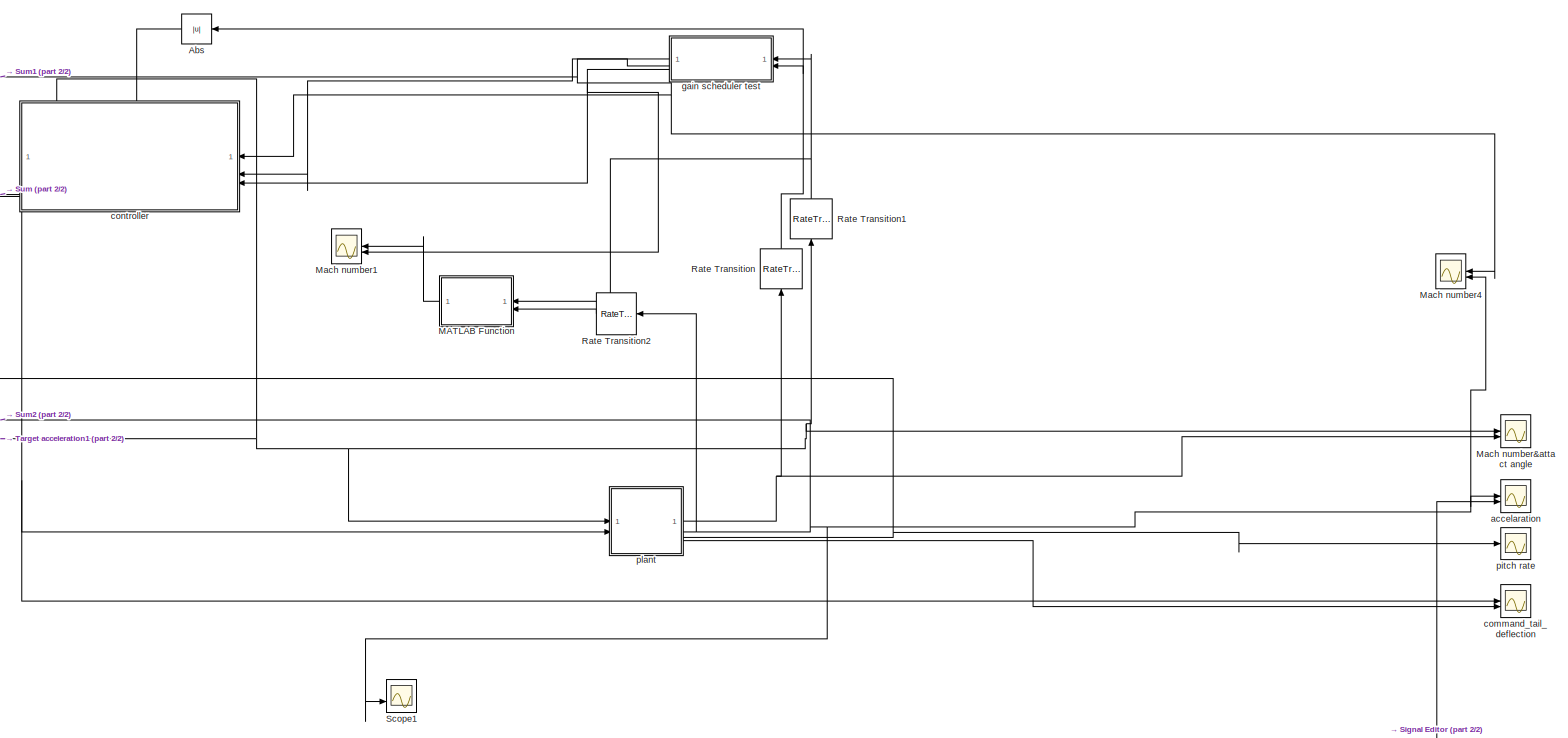
[diagram: root canvas - part 1/2, most of the canvas]
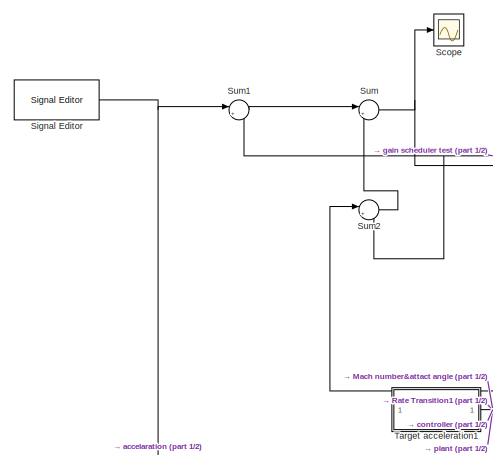
[diagram: root canvas - part 2/2, top left region]
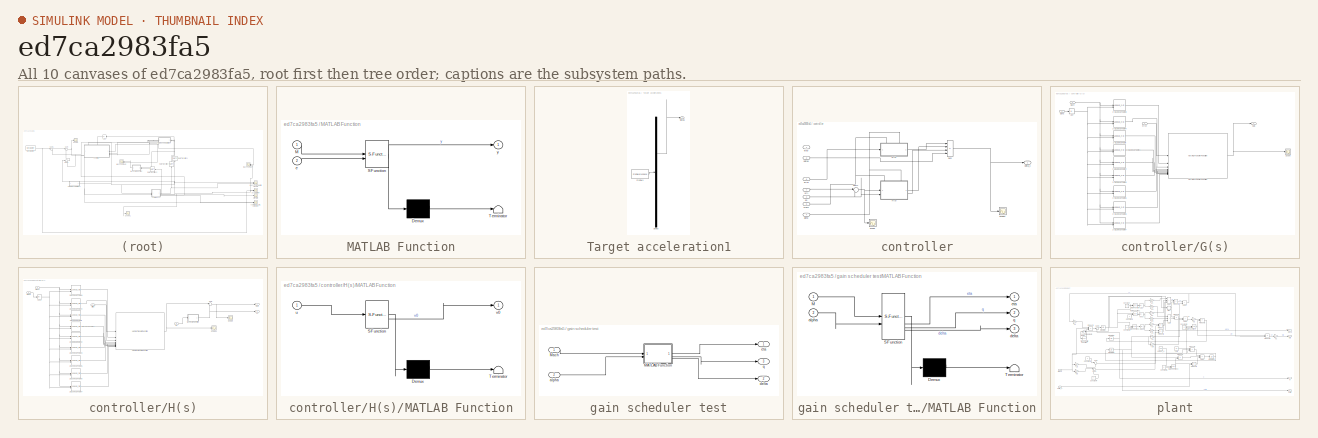
[diagram: thumbnail index - all 10 canvases of the model, root first then tree order]
MODEL slx_ed7ca2983fa5
KIND model
CONFIG AbsTol = auto
CONFIG EnableMultiTasking = off
CONFIG FixedStep = 0.00001
CONFIG MaxStep = auto
CONFIG MinStep = auto
CONFIG RelTol = 1e-3
CONFIG SampleTimeConstraint = Unconstrained
CONFIG SolverName = FixedStepAuto
CONFIG StartTime = 0.0
CONFIG StopTime = 10
BLOCK [Scope]  pitch rate
  Floating = off
  NumInputPorts = 1
  ScopeSpecificationString = Simulink.scopes.TimeScopeBlockCfg('CurrentConfiguration', extmgr.ConfigurationSet(extmgr.Configuration('Core','General UI',true),extmgr.Configuration('Core','Source UI',true),extmgr.Configuration('Sources','WiredSimulink',true,'DataLoggingVariableName','ScopeData1'),extmgr.Configuration('Visuals','Time Domain',true,'SerializedDisplays',{struct('MinYLimReal','-3.8999','MaxYLimReal','3.93521','YLabe...<+1419ch>
BLOCK [Abs] Abs
  SaturateOnIntegerOverflow = off
BLOCK [SubSystem] MATLAB Function
  ErrorFcn = Stateflow.Translate.translate
  LibrarySourceBlock = simulink/User-Defined\nFunctions/MATLAB Function
  PermitHierarchicalResolution = ExplicitOnly
  SFBlockType = MATLAB Function
  TreatAsAtomicUnit = on
BLOCK [Demux] MATLAB Function/ Demux 
  Outputs = 1
BLOCK [S-Function] MATLAB Function/ SFunction 
  EnableBusSupport = on
  FunctionName = sf_sfun
  PortCounts = [2 2]
  SFcnIsStateOwnerBlock = off
  SFunctionDeploymentMode = off
  Tag = Stateflow S-Function 1
BLOCK [Terminator] MATLAB Function/ Terminator 
BLOCK [Inport] MATLAB Function/M
BLOCK [Inport] MATLAB Function/e
  Port = 2
BLOCK [Outport] MATLAB Function/y
BLOCK [Scope] Mach number&attact angle
  Floating = off
  NumInputPorts = 2
  ScopeSpecificationString = Simulink.scopes.TimeScopeBlockCfg('CurrentConfiguration', extmgr.ConfigurationSet(extmgr.Configuration('Core','General UI',true),extmgr.Configuration('Core','Source UI',true),extmgr.Configuration('Sources','WiredSimulink',true,'DataLoggingVariableName','ScopeData1'),extmgr.Configuration('Visuals','Time Domain',true,'SerializedDisplays',{struct('MinYLimReal','2.46297','MaxYLimReal','2.71523','YLabe...<+2009ch>
BLOCK [Scope] Mach number1
  Floating = off
  NumInputPorts = 2
  ScopeSpecificationString = Simulink.scopes.TimeScopeBlockCfg('CurrentConfiguration', extmgr.ConfigurationSet(extmgr.Configuration('Core','General UI',true),extmgr.Configuration('Core','Source UI',true),extmgr.Configuration('Sources','WiredSimulink',true,'DataLoggingVariableName','ScopeData2'),extmgr.Configuration('Visuals','Time Domain',true,'SerializedDisplays',{struct('MinYLimReal','-32384.21273','MaxYLimReal','3635.73109...<+2059ch>
BLOCK [Scope] Mach number4
  Floating = off
  NumInputPorts = 2
  ScopeSpecificationString = Simulink.scopes.TimeScopeBlockCfg('CurrentConfiguration', extmgr.ConfigurationSet(extmgr.Configuration('Core','General UI',true),extmgr.Configuration('Core','Source UI',true),extmgr.Configuration('Sources','WiredSimulink',true,'DataLoggingVariableName','ScopeData3'),extmgr.Configuration('Visuals','Time Domain',true,'SerializedDisplays',{struct('MinYLimReal','-38915498600.27844','MaxYLimReal','4323...<+1551ch>
BLOCK [RateTransition] Rate Transition
  NameLocation = right
  OutPortSampleTime = 0.001
BLOCK [RateTransition] Rate Transition1
  NameLocation = right
  OutPortSampleTime = 0.001
BLOCK [RateTransition] Rate Transition2
  OutPortSampleTime = 0.0001
BLOCK [Scope] Scope
  Floating = off
  NumInputPorts = 1
  ScopeSpecificationString = Simulink.scopes.TimeScopeBlockCfg('CurrentConfiguration', extmgr.ConfigurationSet(extmgr.Configuration('Core','General UI',true),extmgr.Configuration('Core','Source UI',true),extmgr.Configuration('Sources','WiredSimulink',true,'DataLoggingVariableName','ScopeData8'),extmgr.Configuration('Visuals','Time Domain',true,'SerializedDisplays',{struct('MinYLimReal','-0.06131','MaxYLimReal','0.02821','YLab...<+1452ch>
BLOCK [Scope] Scope1
  Floating = off
  NumInputPorts = 2
  ScopeSpecificationString = Simulink.scopes.TimeScopeBlockCfg('CurrentConfiguration', extmgr.ConfigurationSet(extmgr.Configuration('Core','General UI',true),extmgr.Configuration('Core','Source UI',true),extmgr.Configuration('Sources','WiredSimulink',true,'DataLoggingVariableName','ScopeData9'),extmgr.Configuration('Visuals','Time Domain',true,'SerializedDisplays',{struct('MinYLimReal','-1.00000','MaxYLimReal','1.00000','YLab...<+2041ch>
BLOCK [Reference] Signal Editor  REF=SignalEditorBlockLib/Signal Editor
  LibrarySourceBlock = simulink/Sources/Signal Editor
  SourceBlock = SignalEditorBlockLib/Signal Editor
  SourceType = SignalEditor
  UserDataPersistent = on
BLOCK [Sum] Sum
  Inputs = |+-
BLOCK [Sum] Sum1
  Inputs = |+-
BLOCK [Sum] Sum2
  Inputs = |+-
BLOCK [SubSystem] Target acceleration1
  ClipboardFcn = sigbuilder_block('clipboard');
  CloseFcn = sigbuilder_block('close');
  ContinueFcn = sigbuilder_block('continue');
  CopyFcn = sigbuilder_block('copy');
  DeleteFcn = sigbuilder_block('delete');
  LoadFcn = sigbuilder_block('load',[278.5 464.5 513.5 322.5 ]);
  MaskHideContents = on
  ModelCloseFcn = sigbuilder_block('modelClose');
  NameChangeFcn = sigbuilder_block('namechange');
  OpenFcn = sigbuilder_block('open',[221 107.5 550.5 322.5 ]);
  PauseFcn = sigbuilder_block('pause');
  PreSaveFcn = sigbuilder_block('preSave');
  StartFcn = sigbuilder_block('start');
  StopFcn = sigbuilder_block('stop');
  Tag = STV Subsys
BLOCK [Demux] Target acceleration1/Demux
  DisplayOption = none
  Outputs = 1
  Tag = STV Demux
BLOCK [FromWorkspace] Target acceleration1/FromWs
  Tag = STV FromWs
  VariableName = tuvar
BLOCK [Outport] Target acceleration1/Signal 1
  Tag = STV Outport
BLOCK [Scope] accelaration
  Floating = off
  NumInputPorts = 2
  ScopeSpecificationString = Simulink.scopes.TimeScopeBlockCfg('CurrentConfiguration', extmgr.ConfigurationSet(extmgr.Configuration('Core','General UI',true,'FigureColor',[1 1 1]),extmgr.Configuration('Core','Source UI',true),extmgr.Configuration('Sources','WiredSimulink',true),extmgr.Configuration('Visuals','Time Domain',true,'SerializedDisplays',{struct('MinYLimReal','-4.67438','MaxYLimReal','31.70864','YLabelReal','','MinY...<+2545ch>
BLOCK [Scope] command_tail_deflection
  Floating = off
  NumInputPorts = 2
  ScopeSpecificationString = Simulink.scopes.TimeScopeBlockCfg('CurrentConfiguration', extmgr.ConfigurationSet(extmgr.Configuration('Core','General UI',true,'FigureColor',[1 1 1]),extmgr.Configuration('Core','Source UI',true),extmgr.Configuration('Sources','WiredSimulink',true,'DataLoggingVariableName','ScopeData2'),extmgr.Configuration('Visuals','Time Domain',true,'SerializedDisplays',{struct('MinYLimReal','-6.84869','MaxYLi...<+2307ch>
BLOCK [SubSystem] controller
  PortSchema = {"entries":[{"content":{"sides":[{"content":{"connectorIds":["In1","In2"]},"type":"ConnectorPlacement.EquallySpacedRectSide","uuid":"ccbd3968-3c34-4172-8982-2717baa6aaec"},{"content":{"connectorIds":["In6","In7"],"side":"RIGHT"},"type":"ConnectorPlacement.EquallySpacedRectSide","uuid":"ff48a950-eb2b-4faf-a742-71355e33462e"},{"content":{"connectorIds":["In3","In4","In5"],"side":"TOP"},"type":"Conne...<+418ch>
BLOCK [SubSystem] controller/G(s)
  PortSchema = {"entries":[{"content":{"sides":[{"content":{"connectorIds":["In1"]},"type":"ConnectorPlacement.EquallySpacedRectSide","uuid":"89c4dd89-01f0-41d8-90e7-82360ec46edc"},{"content":{"connectorIds":["Out1"],"side":"RIGHT"},"type":"ConnectorPlacement.EquallySpacedRectSide","uuid":"293521c5-f39c-474b-9224-6fe6832128f5"},{"content":{"connectorIds":["In2","In3"],"side":"TOP"},"type":"ConnectorPlacement.Equ...<+251ch>
BLOCK [Lookup_n-D] controller/G(s)/2-D Lookup Table
  BreakpointsForDimension1 = Mi
  BreakpointsForDimension1FirstPoint = 10
  BreakpointsForDimension1Spacing = 12
  BreakpointsForDimension2 = ai
  BreakpointsForDimension2FirstPoint = 10
  BreakpointsForDimension2Spacing = 12
  DiagnosticForOutOfRangeInput = Error
  IndexSearchMethod = Evenly spaced points
  InputPortMap = u0,u1
  InternalRulePriority = Speed
  InterpMethod = Flat
  LookupTableObject = ''
  RndMeth = Simplest
  Table = b_G1
BLOCK [Lookup_n-D] controller/G(s)/2-D Lookup Table1
  BreakpointsForDimension1 = Mi
  BreakpointsForDimension1FirstPoint = 10
  BreakpointsForDimension1Spacing = 12
  BreakpointsForDimension2 = ai
  BreakpointsForDimension2FirstPoint = 10
  BreakpointsForDimension2Spacing = 12
  DiagnosticForOutOfRangeInput = Error
  IndexSearchMethod = Evenly spaced points
  InputPortMap = u0,u1
  InternalRulePriority = Speed
  InterpMethod = Flat
  LookupTableObject = ''
  RndMeth = Simplest
  Table = a_G1
BLOCK [Lookup_n-D] controller/G(s)/2-D Lookup Table2
  BreakpointsForDimension1 = Mi
  BreakpointsForDimension1FirstPoint = 10
  BreakpointsForDimension1Spacing = 12
  BreakpointsForDimension2 = ai
  BreakpointsForDimension2FirstPoint = 10
  BreakpointsForDimension2Spacing = 12
  DiagnosticForOutOfRangeInput = Error
  IndexSearchMethod = Evenly spaced points
  InputPortMap = u0,u1
  InternalRulePriority = Speed
  InterpMethod = Flat
  LookupTableObject = ''
  RndMeth = Simplest
  Table = b_G2
BLOCK [Lookup_n-D] controller/G(s)/2-D Lookup Table3
  BreakpointsForDimension1 = Mi
  BreakpointsForDimension1FirstPoint = 10
  BreakpointsForDimension1Spacing = 12
  BreakpointsForDimension2 = ai
  BreakpointsForDimension2FirstPoint = 10
  BreakpointsForDimension2Spacing = 12
  DiagnosticForOutOfRangeInput = Error
  IndexSearchMethod = Evenly spaced points
  InputPortMap = u0,u1
  InternalRulePriority = Speed
  InterpMethod = Flat
  LookupTableObject = ''
  RndMeth = Simplest
  Table = a_G2
BLOCK [Lookup_n-D] controller/G(s)/2-D Lookup Table4
  BreakpointsForDimension1 = Mi
  BreakpointsForDimension1FirstPoint = 10
  BreakpointsForDimension1Spacing = 12
  BreakpointsForDimension2 = ai
  BreakpointsForDimension2FirstPoint = 10
  BreakpointsForDimension2Spacing = 12
  DiagnosticForOutOfRangeInput = Error
  IndexSearchMethod = Evenly spaced points
  InputPortMap = u0,u1
  InternalRulePriority = Speed
  InterpMethod = Flat
  LookupTableObject = ''
  RndMeth = Simplest
  Table = a_G0
BLOCK [Lookup_n-D] controller/G(s)/2-D Lookup Table5
  BreakpointsForDimension1 = Mi
  BreakpointsForDimension1FirstPoint = 10
  BreakpointsForDimension1Spacing = 12
  BreakpointsForDimension2 = ai
  BreakpointsForDimension2FirstPoint = 10
  BreakpointsForDimension2Spacing = 12
  DiagnosticForOutOfRangeInput = Error
  IndexSearchMethod = Evenly spaced points
  InputPortMap = u0,u1
  InternalRulePriority = Speed
  InterpMethod = Flat
  LookupTableObject = ''
  RndMeth = Simplest
  Table = b_G3
BLOCK [Lookup_n-D] controller/G(s)/2-D Lookup Table6
  BreakpointsForDimension1 = Mi
  BreakpointsForDimension1FirstPoint = 10
  BreakpointsForDimension1Spacing = 12
  BreakpointsForDimension2 = ai
  BreakpointsForDimension2FirstPoint = 10
  BreakpointsForDimension2Spacing = 12
  DiagnosticForOutOfRangeInput = Error
  IndexSearchMethod = Evenly spaced points
  InputPortMap = u0,u1
  InternalRulePriority = Speed
  InterpMethod = Flat
  LookupTableObject = ''
  RndMeth = Simplest
  Table = a_G3
BLOCK [Lookup_n-D] controller/G(s)/2-D Lookup Table7
  BreakpointsForDimension1 = Mi
  BreakpointsForDimension1FirstPoint = 10
  BreakpointsForDimension1Spacing = 12
  BreakpointsForDimension2 = ai
  BreakpointsForDimension2FirstPoint = 10
  BreakpointsForDimension2Spacing = 12
  DiagnosticForOutOfRangeInput = Error
  IndexSearchMethod = Evenly spaced points
  InputPortMap = u0,u1
  InternalRulePriority = Speed
  InterpMethod = Flat
  LookupTableObject = ''
  RndMeth = Simplest
  Table = b_G4
BLOCK [Lookup_n-D] controller/G(s)/2-D Lookup Table8
  BreakpointsForDimension1 = Mi
  BreakpointsForDimension1FirstPoint = 10
  BreakpointsForDimension1Spacing = 12
  BreakpointsForDimension2 = ai
  BreakpointsForDimension2FirstPoint = 10
  BreakpointsForDimension2Spacing = 12
  DiagnosticForOutOfRangeInput = Error
  IndexSearchMethod = Evenly spaced points
  InputPortMap = u0,u1
  InternalRulePriority = Speed
  InterpMethod = Flat
  LookupTableObject = ''
  RndMeth = Simplest
  Table = b_G0
BLOCK [Abs] controller/G(s)/Abs
  SaturateOnIntegerOverflow = off
BLOCK [Inport] controller/G(s)/Mach
  Port = 2
BLOCK [Outport] controller/G(s)/Out1
BLOCK [Scope] controller/G(s)/Scope
  Floating = off
  NumInputPorts = 1
  ScopeSpecificationString = Simulink.scopes.TimeScopeBlockCfg('CurrentConfiguration', extmgr.ConfigurationSet(extmgr.Configuration('Core','General UI',true),extmgr.Configuration('Core','Source UI',true),extmgr.Configuration('Sources','WiredSimulink',true,'DataLoggingVariableName','ScopeData4'),extmgr.Configuration('Visuals','Time Domain',true,'SerializedDisplays',{struct('MinYLimReal','-2.65297','MaxYLimReal','1.96733','YLab...<+1458ch>
BLOCK [Reference] controller/G(s)/Varying Transfer Function  REF=cstblocks/Linear Parameter Varying/Varying Transfer Function
  SourceBlock = cstblocks/Linear Parameter Varying/Varying Transfer Function
  SourceType = Varying Transfer Function
BLOCK [Inport] controller/G(s)/alpha
  Port = 3
BLOCK [Inport] controller/G(s)/error
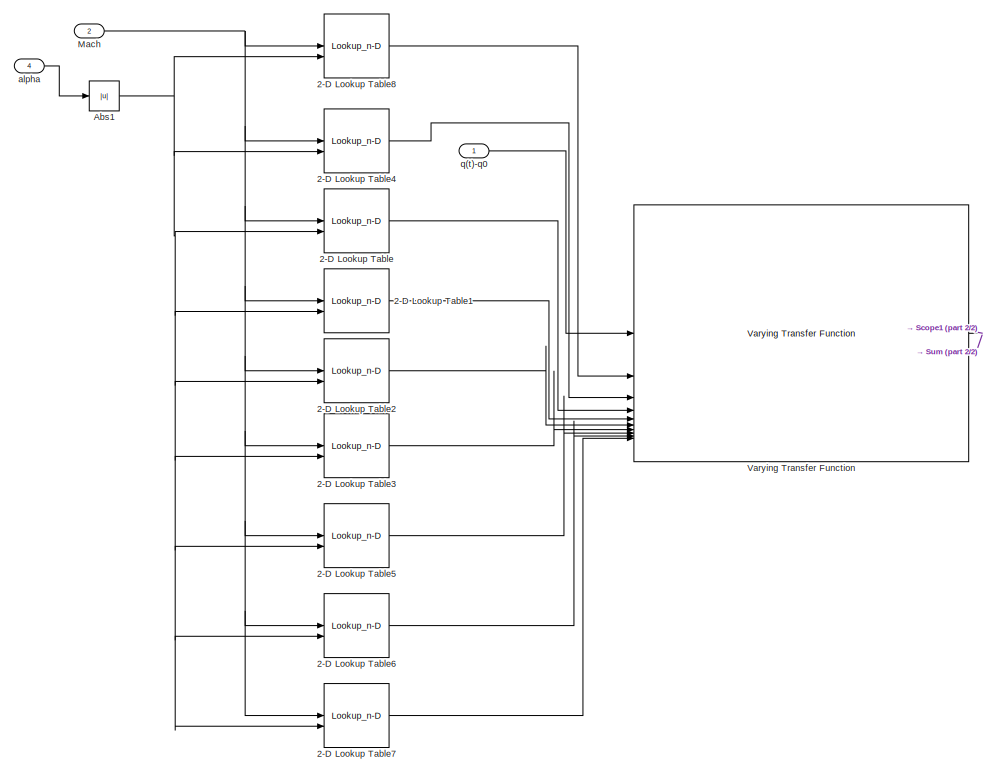
[diagram: controller/H(s) - part 1/2, left side, full height]
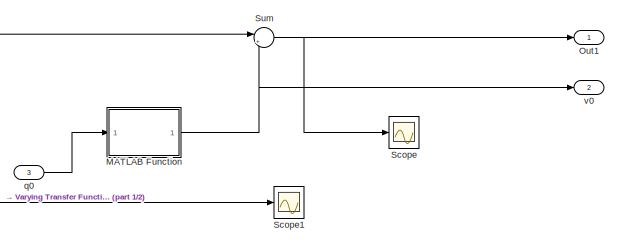
[diagram: controller/H(s) - part 2/2, top right region]
BLOCK [SubSystem] controller/H(s)
  PortSchema = {"entries":[{"content":{"sides":[{"content":{"connectorIds":["In1"]},"type":"ConnectorPlacement.EquallySpacedRectSide","uuid":"89c4dd89-01f0-41d8-90e7-82360ec46edc"},{"content":{"connectorIds":["Out1","Out2"],"side":"RIGHT"},"type":"ConnectorPlacement.EquallySpacedRectSide","uuid":"293521c5-f39c-474b-9224-6fe6832128f5"},{"content":{"connectorIds":["In2","In3","In4"],"side":"TOP"},"type":"Connector...<+264ch>
BLOCK [Lookup_n-D] controller/H(s)/2-D Lookup Table
  BreakpointsForDimension1 = Mi
  BreakpointsForDimension1FirstPoint = 10
  BreakpointsForDimension1Spacing = 12
  BreakpointsForDimension2 = ai
  BreakpointsForDimension2FirstPoint = 10
  BreakpointsForDimension2Spacing = 12
  DiagnosticForOutOfRangeInput = Error
  IndexSearchMethod = Evenly spaced points
  InputPortMap = u0,u1
  InternalRulePriority = Speed
  InterpMethod = Flat
  LookupTableObject = ''
  RndMeth = Simplest
  Table = b_H1
BLOCK [Lookup_n-D] controller/H(s)/2-D Lookup Table1
  BreakpointsForDimension1 = Mi
  BreakpointsForDimension1FirstPoint = 10
  BreakpointsForDimension1Spacing = 12
  BreakpointsForDimension2 = ai
  BreakpointsForDimension2FirstPoint = 10
  BreakpointsForDimension2Spacing = 12
  DiagnosticForOutOfRangeInput = Error
  IndexSearchMethod = Evenly spaced points
  InputPortMap = u0,u1
  InternalRulePriority = Speed
  InterpMethod = Flat
  LookupTableObject = ''
  RndMeth = Simplest
  Table = a_H1
BLOCK [Lookup_n-D] controller/H(s)/2-D Lookup Table2
  BreakpointsForDimension1 = Mi
  BreakpointsForDimension1FirstPoint = 10
  BreakpointsForDimension1Spacing = 12
  BreakpointsForDimension2 = ai
  BreakpointsForDimension2FirstPoint = 10
  BreakpointsForDimension2Spacing = 12
  DiagnosticForOutOfRangeInput = Error
  IndexSearchMethod = Evenly spaced points
  InputPortMap = u0,u1
  InternalRulePriority = Speed
  InterpMethod = Flat
  LookupTableObject = ''
  RndMeth = Simplest
  Table = b_H2
BLOCK [Lookup_n-D] controller/H(s)/2-D Lookup Table3
  BreakpointsForDimension1 = Mi
  BreakpointsForDimension1FirstPoint = 10
  BreakpointsForDimension1Spacing = 12
  BreakpointsForDimension2 = ai
  BreakpointsForDimension2FirstPoint = 10
  BreakpointsForDimension2Spacing = 12
  DiagnosticForOutOfRangeInput = Error
  IndexSearchMethod = Evenly spaced points
  InputPortMap = u0,u1
  InternalRulePriority = Speed
  InterpMethod = Flat
  LookupTableObject = ''
  RndMeth = Simplest
  Table = a_H2
BLOCK [Lookup_n-D] controller/H(s)/2-D Lookup Table4
  BreakpointsForDimension1 = Mi
  BreakpointsForDimension1FirstPoint = 10
  BreakpointsForDimension1Spacing = 12
  BreakpointsForDimension2 = ai
  BreakpointsForDimension2FirstPoint = 10
  BreakpointsForDimension2Spacing = 12
  DiagnosticForOutOfRangeInput = Error
  IndexSearchMethod = Evenly spaced points
  InputPortMap = u0,u1
  InternalRulePriority = Speed
  InterpMethod = Flat
  LookupTableObject = ''
  RndMeth = Simplest
  Table = a_H0
BLOCK [Lookup_n-D] controller/H(s)/2-D Lookup Table5
  BreakpointsForDimension1 = Mi
  BreakpointsForDimension1FirstPoint = 10
  BreakpointsForDimension1Spacing = 12
  BreakpointsForDimension2 = ai
  BreakpointsForDimension2FirstPoint = 10
  BreakpointsForDimension2Spacing = 12
  DiagnosticForOutOfRangeInput = Error
  IndexSearchMethod = Evenly spaced points
  InputPortMap = u0,u1
  InternalRulePriority = Speed
  InterpMethod = Flat
  LookupTableObject = ''
  RndMeth = Simplest
  Table = b_H3
BLOCK [Lookup_n-D] controller/H(s)/2-D Lookup Table6
  BreakpointsForDimension1 = Mi
  BreakpointsForDimension1FirstPoint = 10
  BreakpointsForDimension1Spacing = 12
  BreakpointsForDimension2 = ai
  BreakpointsForDimension2FirstPoint = 10
  BreakpointsForDimension2Spacing = 12
  DiagnosticForOutOfRangeInput = Error
  IndexSearchMethod = Evenly spaced points
  InputPortMap = u0,u1
  InternalRulePriority = Speed
  InterpMethod = Flat
  LookupTableObject = ''
  RndMeth = Simplest
  Table = a_H3
BLOCK [Lookup_n-D] controller/H(s)/2-D Lookup Table7
  BreakpointsForDimension1 = Mi
  BreakpointsForDimension1FirstPoint = 10
  BreakpointsForDimension1Spacing = 12
  BreakpointsForDimension2 = ai
  BreakpointsForDimension2FirstPoint = 10
  BreakpointsForDimension2Spacing = 12
  DiagnosticForOutOfRangeInput = Error
  IndexSearchMethod = Evenly spaced points
  InputPortMap = u0,u1
  InternalRulePriority = Speed
  InterpMethod = Flat
  LookupTableObject = ''
  RndMeth = Simplest
  Table = b_H4
BLOCK [Lookup_n-D] controller/H(s)/2-D Lookup Table8
  BreakpointsForDimension1 = Mi
  BreakpointsForDimension1FirstPoint = 10
  BreakpointsForDimension1Spacing = 12
  BreakpointsForDimension2 = ai
  BreakpointsForDimension2FirstPoint = 10
  BreakpointsForDimension2Spacing = 12
  DiagnosticForOutOfRangeInput = Error
  IndexSearchMethod = Evenly spaced points
  InputPortMap = u0,u1
  InternalRulePriority = Speed
  InterpMethod = Flat
  LookupTableObject = ''
  RndMeth = Simplest
  Table = b_H0
BLOCK [Abs] controller/H(s)/Abs1
  SaturateOnIntegerOverflow = off
BLOCK [SubSystem] controller/H(s)/MATLAB Function
  ErrorFcn = Stateflow.Translate.translate
  LibrarySourceBlock = simulink/User-Defined\nFunctions/MATLAB Function
  PermitHierarchicalResolution = ExplicitOnly
  SFBlockType = MATLAB Function
  TreatAsAtomicUnit = on
BLOCK [Demux] controller/H(s)/MATLAB Function/ Demux 
  Outputs = 1
BLOCK [S-Function] controller/H(s)/MATLAB Function/ SFunction 
  EnableBusSupport = on
  FunctionName = sf_sfun
  PortCounts = [1 2]
  SFcnIsStateOwnerBlock = off
  SFunctionDeploymentMode = off
  Tag = Stateflow S-Function 3
BLOCK [Terminator] controller/H(s)/MATLAB Function/ Terminator 
BLOCK [Inport] controller/H(s)/MATLAB Function/u
BLOCK [Outport] controller/H(s)/MATLAB Function/v0
BLOCK [Inport] controller/H(s)/Mach
  Port = 2
BLOCK [Outport] controller/H(s)/Out1
BLOCK [Scope] controller/H(s)/Scope
  Floating = off
  NumInputPorts = 1
  ScopeSpecificationString = Simulink.scopes.TimeScopeBlockCfg('CurrentConfiguration', extmgr.ConfigurationSet(extmgr.Configuration('Core','General UI',true),extmgr.Configuration('Core','Source UI',true),extmgr.Configuration('Sources','WiredSimulink',true,'DataLoggingVariableName','ScopeData5'),extmgr.Configuration('Visuals','Time Domain',true,'SerializedDisplays',{struct('MinYLimReal','-4.79902','MaxYLimReal','4.59412','YLab...<+1417ch>
BLOCK [Scope] controller/H(s)/Scope1
  Floating = off
  NumInputPorts = 1
  ScopeSpecificationString = Simulink.scopes.TimeScopeBlockCfg('CurrentConfiguration', extmgr.ConfigurationSet(extmgr.Configuration('Core','General UI',true),extmgr.Configuration('Core','Source UI',true),extmgr.Configuration('Sources','WiredSimulink',true,'DataLoggingVariableName','ScopeData1'),extmgr.Configuration('Visuals','Time Domain',true,'SerializedDisplays',{struct('MinYLimReal','-4.75769','MaxYLimReal','4.5891','YLabe...<+1437ch>
BLOCK [Sum] controller/H(s)/Sum
  Inputs = |+-
BLOCK [Reference] controller/H(s)/Varying Transfer Function  REF=cstblocks/Linear Parameter Varying/Varying Transfer Function
  SourceBlock = cstblocks/Linear Parameter Varying/Varying Transfer Function
  SourceType = Varying Transfer Function
BLOCK [Inport] controller/H(s)/alpha
  Port = 4
BLOCK [Inport] controller/H(s)/q(t)-q0
BLOCK [Inport] controller/H(s)/q0
  Port = 3
BLOCK [Outport] controller/H(s)/v0
  Port = 2
BLOCK [Inport] controller/Mach
  Port = 5
BLOCK [Scope] controller/Scope
  Floating = off
  NumInputPorts = 1
  ScopeSpecificationString = Simulink.scopes.TimeScopeBlockCfg('CurrentConfiguration', extmgr.ConfigurationSet(extmgr.Configuration('Core','General UI',true),extmgr.Configuration('Core','Source UI',true),extmgr.Configuration('Sources','WiredSimulink',true,'DataLoggingVariableName','ScopeData6'),extmgr.Configuration('Visuals','Time Domain',true,'SerializedDisplays',{struct('MinYLimReal','-0.49037','MaxYLimReal','0.05449','YLab...<+1437ch>
BLOCK [Scope] controller/Scope1
  Floating = off
  NumInputPorts = 1
  ScopeSpecificationString = Simulink.scopes.TimeScopeBlockCfg('CurrentConfiguration', extmgr.ConfigurationSet(extmgr.Configuration('Core','General UI',true),extmgr.Configuration('Core','Source UI',true),extmgr.Configuration('Sources','WiredSimulink',true,'DataLoggingVariableName','ScopeData7'),extmgr.Configuration('Visuals','Time Domain',true,'SerializedDisplays',{struct('MinYLimReal','-8.73286','MaxYLimReal','7.99292','YLab...<+1417ch>
BLOCK [Sum] controller/Sum
  IconShape = rectangular
  Inputs = |++--
BLOCK [Sum] controller/Sum1
  Inputs = |+-
BLOCK [Inport] controller/alpha
  Port = 4
BLOCK [Inport] controller/delta0
  Port = 2
BLOCK [Outport] controller/delta_c
BLOCK [Inport] controller/error
  Port = 6
BLOCK [Inport] controller/eta0
BLOCK [Inport] controller/q(t)
  Port = 7
BLOCK [Inport] controller/q0
  Port = 3
BLOCK [SubSystem] gain scheduler test
BLOCK [SubSystem] gain scheduler test/MATLAB Function
  ErrorFcn = Stateflow.Translate.translate
  PermitHierarchicalResolution = ExplicitOnly
  SFBlockType = MATLAB Function
  TreatAsAtomicUnit = on
BLOCK [Demux] gain scheduler test/MATLAB Function/ Demux 
  Outputs = 1
BLOCK [S-Function] gain scheduler test/MATLAB Function/ SFunction 
  EnableBusSupport = on
  FunctionName = sf_sfun
  PortCounts = [2 4]
  SFcnIsStateOwnerBlock = off
  SFunctionDeploymentMode = off
  Tag = Stateflow S-Function 2
BLOCK [Terminator] gain scheduler test/MATLAB Function/ Terminator 
BLOCK [Inport] gain scheduler test/MATLAB Function/M
BLOCK [Inport] gain scheduler test/MATLAB Function/alpha
  Port = 2
BLOCK [Outport] gain scheduler test/MATLAB Function/delta
  Port = 3
BLOCK [Outport] gain scheduler test/MATLAB Function/eta
  VectorParamsAs1DForOutWhenUnconnected = off
BLOCK [Outport] gain scheduler test/MATLAB Function/q
  Port = 2
BLOCK [Inport] gain scheduler test/Mach
BLOCK [Inport] gain scheduler test/alpha
  Port = 2
BLOCK [Outport] gain scheduler test/delta
  Port = 2
BLOCK [Outport] gain scheduler test/eta
BLOCK [Outport] gain scheduler test/q
  Port = 3
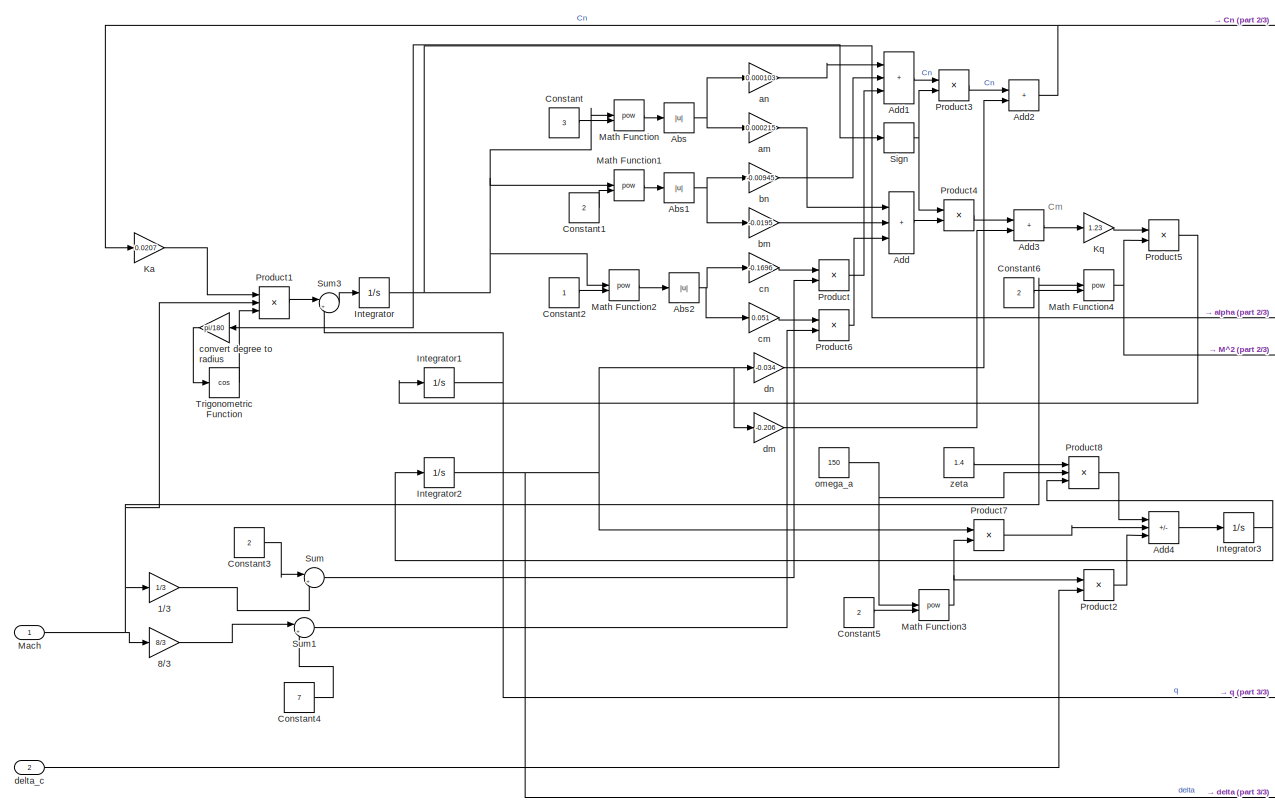
[diagram: plant - part 1/3, center side, full height]
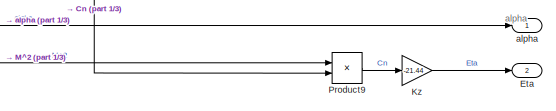
[diagram: plant - part 2/3, middle right region]
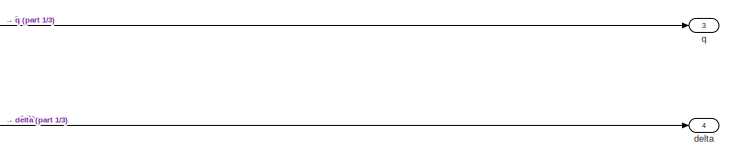
[diagram: plant - part 3/3, bottom right region]
BLOCK [SubSystem] plant
BLOCK [Gain] plant/1//3
  Gain = 1/3
BLOCK [Gain] plant/8//3
  Gain = 8/3
BLOCK [Abs] plant/Abs
  SaturateOnIntegerOverflow = off
BLOCK [Abs] plant/Abs1
  SaturateOnIntegerOverflow = off
BLOCK [Abs] plant/Abs2
  SaturateOnIntegerOverflow = off
BLOCK [Sum] plant/Add
  IconShape = rectangular
  Inputs = +++
BLOCK [Sum] plant/Add1
  IconShape = rectangular
  Inputs = +++
BLOCK [Sum] plant/Add2
  IconShape = rectangular
BLOCK [Sum] plant/Add3
  IconShape = rectangular
BLOCK [Sum] plant/Add4
  IconShape = rectangular
  Inputs = --+
BLOCK [Constant] plant/Constant
  Value = 3
BLOCK [Constant] plant/Constant1
  Value = 2
BLOCK [Constant] plant/Constant2
BLOCK [Constant] plant/Constant3
  Value = 2
BLOCK [Constant] plant/Constant4
  Value = 7
BLOCK [Constant] plant/Constant5
  Value = 2
BLOCK [Constant] plant/Constant6
  Value = 2
BLOCK [Outport] plant/Eta
  Port = 2
BLOCK [Integrator] plant/Integrator
BLOCK [Integrator] plant/Integrator1
BLOCK [Integrator] plant/Integrator2
BLOCK [Integrator] plant/Integrator3
BLOCK [Gain] plant/Ka
  Gain = 0.0207
BLOCK [Gain] plant/Kq
  Gain = 1.23
BLOCK [Gain] plant/Kz
  Gain = -21.44
BLOCK [Inport] plant/Mach
BLOCK [Math] plant/Math Function
  Operator = pow
BLOCK [Math] plant/Math Function1
  Operator = pow
BLOCK [Math] plant/Math Function2
  Operator = pow
BLOCK [Math] plant/Math Function3
  Operator = pow
BLOCK [Math] plant/Math Function4
  Operator = pow
BLOCK [Product] plant/Product
BLOCK [Product] plant/Product1
  Inputs = 3
BLOCK [Product] plant/Product2
BLOCK [Product] plant/Product3
BLOCK [Product] plant/Product4
BLOCK [Product] plant/Product5
BLOCK [Product] plant/Product6
BLOCK [Product] plant/Product7
BLOCK [Product] plant/Product8
  Inputs = 3
BLOCK [Product] plant/Product9
BLOCK [Signum] plant/Sign
BLOCK [Sum] plant/Sum
  Inputs = |+-
BLOCK [Sum] plant/Sum1
  Inputs = |+-
BLOCK [Sum] plant/Sum3
  Inputs = |+-
BLOCK [Trigonometry] plant/Trigonometric Function
  Operator = cos
BLOCK [Outport] plant/alpha
BLOCK [Gain] plant/am
  Gain = 0.000215
BLOCK [Gain] plant/an
  Gain = 0.000103
BLOCK [Gain] plant/bm
  Gain = -0.0195
BLOCK [Gain] plant/bn
  Gain = -0.00945
BLOCK [Gain] plant/cm
  Gain = 0.051
BLOCK [Gain] plant/cn
  Gain = -0.1696
BLOCK [Gain] plant/convert degree to radius
  Gain = pi/180
BLOCK [Outport] plant/delta
  Port = 4
BLOCK [Inport] plant/delta_c
  Port = 2
BLOCK [Gain] plant/dm
  Gain = -0.206
BLOCK [Gain] plant/dn
  Gain = -0.034
BLOCK [Constant] plant/omega_a
  Value = 150
BLOCK [Outport] plant/q
  Port = 3
BLOCK [Constant] plant/zeta
  Value = 1.4
ANNOTATION plant: Cm
ANNOTATION plant: alpha
LINE Abs:1 -> controller:4
LINE MATLAB Function:1 -> Mach number1:1
NET Rate Transition1:1 -> MATLAB Function:1, gain scheduler test:1
LINE Rate Transition2:1 -> MATLAB Function:2
NET Rate Transition:1 -> Abs:1, gain scheduler test:2
NET Signal Editor:1 -> Sum1:1, accelaration:2
LINE Sum1:1 -> Sum:1
LINE Sum2:1 -> Sum:2
NET Sum:1 -> Scope:1, controller:6
NET Target acceleration1:1 -> Mach number&attact angle:1, Rate Transition1:1, controller:5, plant:1
LINE controller/G(s)/2-D Lookup Table1:1 -> controller/G(s)/Varying Transfer Function:5
LINE controller/G(s)/2-D Lookup Table2:1 -> controller/G(s)/Varying Transfer Function:6
LINE controller/G(s)/2-D Lookup Table3:1 -> controller/G(s)/Varying Transfer Function:7
LINE controller/G(s)/2-D Lookup Table4:1 -> controller/G(s)/Varying Transfer Function:3
LINE controller/G(s)/2-D Lookup Table5:1 -> controller/G(s)/Varying Transfer Function:8
LINE controller/G(s)/2-D Lookup Table6:1 -> controller/G(s)/Varying Transfer Function:9
LINE controller/G(s)/2-D Lookup Table7:1 -> controller/G(s)/Varying Transfer Function:10
LINE controller/G(s)/2-D Lookup Table8:1 -> controller/G(s)/Varying Transfer Function:2
LINE controller/G(s)/2-D Lookup Table:1 -> controller/G(s)/Varying Transfer Function:4
NET controller/G(s)/Abs:1 -> controller/G(s)/2-D Lookup Table1:2, controller/G(s)/2-D Lookup Table2:2, controller/G(s)/2-D Lookup Table3:2, controller/G(s)/2-D Lookup Table4:2, controller/G(s)/2-D Lookup Table5:2, controller/G(s)/2-D Lookup Table6:2, controller/G(s)/2-D Lookup Table7:2, controller/G(s)/2-D Lookup Table8:2, controller/G(s)/2-D Lookup Table:2
NET controller/G(s)/Mach:1 -> controller/G(s)/2-D Lookup Table1:1, controller/G(s)/2-D Lookup Table2:1, controller/G(s)/2-D Lookup Table3:1, controller/G(s)/2-D Lookup Table4:1, controller/G(s)/2-D Lookup Table5:1, controller/G(s)/2-D Lookup Table6:1, controller/G(s)/2-D Lookup Table7:1, controller/G(s)/2-D Lookup Table8:1, controller/G(s)/2-D Lookup Table:1
NET controller/G(s)/Varying Transfer Function:1 -> controller/G(s)/Out1:1, controller/G(s)/Scope:1
LINE controller/G(s)/alpha:1 -> controller/G(s)/Abs:1
LINE controller/G(s)/error:1 -> controller/G(s)/Varying Transfer Function:1
LINE controller/G(s):1 -> controller/Sum:1
LINE controller/H(s)/2-D Lookup Table1:1 -> controller/H(s)/Varying Transfer Function:5
LINE controller/H(s)/2-D Lookup Table2:1 -> controller/H(s)/Varying Transfer Function:6
LINE controller/H(s)/2-D Lookup Table3:1 -> controller/H(s)/Varying Transfer Function:7
LINE controller/H(s)/2-D Lookup Table4:1 -> controller/H(s)/Varying Transfer Function:3
LINE controller/H(s)/2-D Lookup Table5:1 -> controller/H(s)/Varying Transfer Function:8
LINE controller/H(s)/2-D Lookup Table6:1 -> controller/H(s)/Varying Transfer Function:9
LINE controller/H(s)/2-D Lookup Table7:1 -> controller/H(s)/Varying Transfer Function:10
LINE controller/H(s)/2-D Lookup Table8:1 -> controller/H(s)/Varying Transfer Function:2
LINE controller/H(s)/2-D Lookup Table:1 -> controller/H(s)/Varying Transfer Function:4
NET controller/H(s)/Abs1:1 -> controller/H(s)/2-D Lookup Table1:2, controller/H(s)/2-D Lookup Table2:2, controller/H(s)/2-D Lookup Table3:2, controller/H(s)/2-D Lookup Table4:2, controller/H(s)/2-D Lookup Table5:2, controller/H(s)/2-D Lookup Table6:2, controller/H(s)/2-D Lookup Table7:2, controller/H(s)/2-D Lookup Table8:2, controller/H(s)/2-D Lookup Table:2
NET controller/H(s)/MATLAB Function:1 -> controller/H(s)/Sum:2, controller/H(s)/v0:1
NET controller/H(s)/Mach:1 -> controller/H(s)/2-D Lookup Table1:1, controller/H(s)/2-D Lookup Table2:1, controller/H(s)/2-D Lookup Table3:1, controller/H(s)/2-D Lookup Table4:1, controller/H(s)/2-D Lookup Table5:1, controller/H(s)/2-D Lookup Table6:1, controller/H(s)/2-D Lookup Table7:1, controller/H(s)/2-D Lookup Table8:1, controller/H(s)/2-D Lookup Table:1
NET controller/H(s)/Sum:1 -> controller/H(s)/Out1:1, controller/H(s)/Scope:1
NET controller/H(s)/Varying Transfer Function:1 -> controller/H(s)/Scope1:1, controller/H(s)/Sum:1
LINE controller/H(s)/alpha:1 -> controller/H(s)/Abs1:1
LINE controller/H(s)/q(t)-q0:1 -> controller/H(s)/Varying Transfer Function:1
LINE controller/H(s)/q0:1 -> controller/H(s)/MATLAB Function:1
LINE controller/H(s):1 -> controller/Sum:2
LINE controller/H(s):2 -> controller/Sum:3
NET controller/Mach:1 -> controller/G(s):2, controller/H(s):2
NET controller/Sum1:1 -> controller/H(s):1, controller/Scope:1
NET controller/Sum:1 -> controller/Scope1:1, controller/delta_c:1
NET controller/alpha:1 -> controller/G(s):3, controller/H(s):4
LINE controller/delta0:1 -> controller/Sum:4
LINE controller/error:1 -> controller/G(s):1
LINE controller/q(t):1 -> controller/Sum1:1
NET controller/q0:1 -> controller/H(s):3, controller/Sum1:2
NET controller:1 -> command_tail_deflection:1, plant:2
LINE gain scheduler test/MATLAB Function:1 -> gain scheduler test/eta:1
LINE gain scheduler test/MATLAB Function:2 -> gain scheduler test/q:1
LINE gain scheduler test/MATLAB Function:3 -> gain scheduler test/delta:1
LINE gain scheduler test/Mach:1 -> gain scheduler test/MATLAB Function:1
LINE gain scheduler test/alpha:1 -> gain scheduler test/MATLAB Function:2
NET gain scheduler test:1 -> Mach number4:1, Sum1:2, Sum2:2, controller:1
LINE gain scheduler test:2 -> controller:2
NET gain scheduler test:3 -> Mach number1:2, controller:3
LINE plant/1//3:1 -> plant/Sum:2
LINE plant/8//3:1 -> plant/Sum1:1
NET plant/Abs1:1 -> plant/bm:1, plant/bn:1
NET plant/Abs2:1 -> plant/cm:1, plant/cn:1
NET plant/Abs:1 -> plant/am:1, plant/an:1
LINE plant/Add1:1 -> plant/Product3:1
NET plant/Add2:1 -> plant/Ka:1, plant/Product9:2
LINE plant/Add3:1 -> plant/Kq:1
LINE plant/Add4:1 -> plant/Integrator3:1
LINE plant/Add:1 -> plant/Product4:2
LINE plant/Constant1:1 -> plant/Math Function1:2
LINE plant/Constant2:1 -> plant/Math Function2:2
LINE plant/Constant3:1 -> plant/Sum:1
LINE plant/Constant4:1 -> plant/Sum1:2
LINE plant/Constant5:1 -> plant/Math Function3:2
LINE plant/Constant6:1 -> plant/Math Function4:2
LINE plant/Constant:1 -> plant/Math Function:2
NET plant/Integrator1:1 -> plant/Sum3:2, plant/q:1
NET plant/Integrator2:1 -> plant/Product7:1, plant/delta:1, plant/dm:1, plant/dn:1
NET plant/Integrator3:1 -> plant/Integrator2:1, plant/Product8:3
NET plant/Integrator:1 -> plant/Math Function1:1, plant/Math Function2:1, plant/Math Function:1, plant/Sign:1, plant/alpha:1, plant/convert degree to radius:1
LINE plant/Ka:1 -> plant/Product1:1
LINE plant/Kq:1 -> plant/Product5:1
LINE plant/Kz:1 -> plant/Eta:1
NET plant/Mach:1 -> plant/1//3:1, plant/8//3:1, plant/Math Function4:1, plant/Product1:2
LINE plant/Math Function1:1 -> plant/Abs1:1
LINE plant/Math Function2:1 -> plant/Abs2:1
NET plant/Math Function3:1 -> plant/Product2:1, plant/Product7:2
NET plant/Math Function4:1 -> plant/Product5:2, plant/Product9:1
LINE plant/Math Function:1 -> plant/Abs:1
LINE plant/Product1:1 -> plant/Sum3:1
LINE plant/Product2:1 -> plant/Add4:3
LINE plant/Product3:1 -> plant/Add2:1
LINE plant/Product4:1 -> plant/Add3:1
LINE plant/Product5:1 -> plant/Integrator1:1
LINE plant/Product6:1 -> plant/Add:3
LINE plant/Product7:1 -> plant/Add4:2
LINE plant/Product8:1 -> plant/Add4:1
LINE plant/Product9:1 -> plant/Kz:1
LINE plant/Product:1 -> plant/Add1:3
NET plant/Sign:1 -> plant/Product3:2, plant/Product4:1
LINE plant/Sum1:1 -> plant/Product6:2
LINE plant/Sum3:1 -> plant/Integrator:1
LINE plant/Sum:1 -> plant/Product:2
LINE plant/Trigonometric Function:1 -> plant/Product1:3
LINE plant/am:1 -> plant/Add:1
LINE plant/an:1 -> plant/Add1:1
LINE plant/bm:1 -> plant/Add:2
LINE plant/bn:1 -> plant/Add1:2
LINE plant/cm:1 -> plant/Product6:1
LINE plant/cn:1 -> plant/Product:1
LINE plant/convert degree to radius:1 -> plant/Trigonometric Function:1
LINE plant/delta_c:1 -> plant/Product2:2
LINE plant/dm:1 -> plant/Add3:2
LINE plant/dn:1 -> plant/Add2:2
NET plant/omega_a:1 -> plant/Math Function3:1, plant/Product8:2
LINE plant/zeta:1 -> plant/Product8:1
NET plant:1 -> Mach number&attact angle:2, Rate Transition:1
NET plant:2 -> Mach number4:2, Rate Transition2:1, Scope1:2, Sum2:1, accelaration:1
NET plant:3 ->  pitch rate:1, controller:7
LINE plant:4 -> command_tail_deflection:2
note: NET lines group one-source signal fan-out (src -> all destinations, sorted); 1:1 wires keep LINE
CHART MATLAB Function states=1 transitions=1
  STATE_LABEL 'eML_blk_kernel()'
  STATE_LABEL 'SCRIPT:\nfunction y = fcn(M, e)\n\ny = (3.0117e-5*e^3-0.58982*e)*(-0.1194*M^3+1.0984*M^2-3.6607*M+5.3222);\n'
CHART gain scheduler test/MATLAB Function states=1 transitions=1
  STATE_LABEL 'eML_blk_kernel()'
  STATE_LABEL 'SCRIPT:\nfunction [eta, q ,delta]= fcn(M, alpha)\n%#codegen\n\nKz=21.44;\nKa=0.0207;\ndelta=-sign(alpha)*(0.000215*abs(alpha)^3-0.0195*abs(alpha)^2+0.051*abs(alpha)*(-7+8*M/3))/(-0.206)\nalpha\nCn=sign(alpha)*(0.000103*abs(alpha)^3-0.00945*abs(alpha)^2-0.1696*abs(alpha)*(2-M/3))-0.034*delta;\nq=-Ka*M*Cn*cos(alpha*pi/180);\neta=Kz*M^2*Cn'
CHART controller/H(s)/MATLAB Function states=1 transitions=1
  STATE_LABEL 'eML_blk_kernel()'
  STATE_LABEL 'SCRIPT:\nfunction v0 = fcn(u)\nzero_g2=[-158.09+158.05j;-158.09-158.05j; -104.21+107.35j;-104.21-107.35j; -0.60368];\npole_g2=[0; -56250; -1042.2; -144.97+163.15j;-144.97-163.15j; -104.16; -1.067];\ngain_h2=[0.67619];\nzero_h2=[0;-5000000; -1041.7; -104.12+107.34j; -104.12-107.34j; 14.625];\npole_h2=[0; -56250; -1042.2; -144.97+163.15j;-144.97-163.15j; -104.16; -1.067];\n\nv0=2.*u\n\n'
CHART  states=0 transitions=0
CHART  states=0 transitions=0
CHART  states=0 transitions=0
